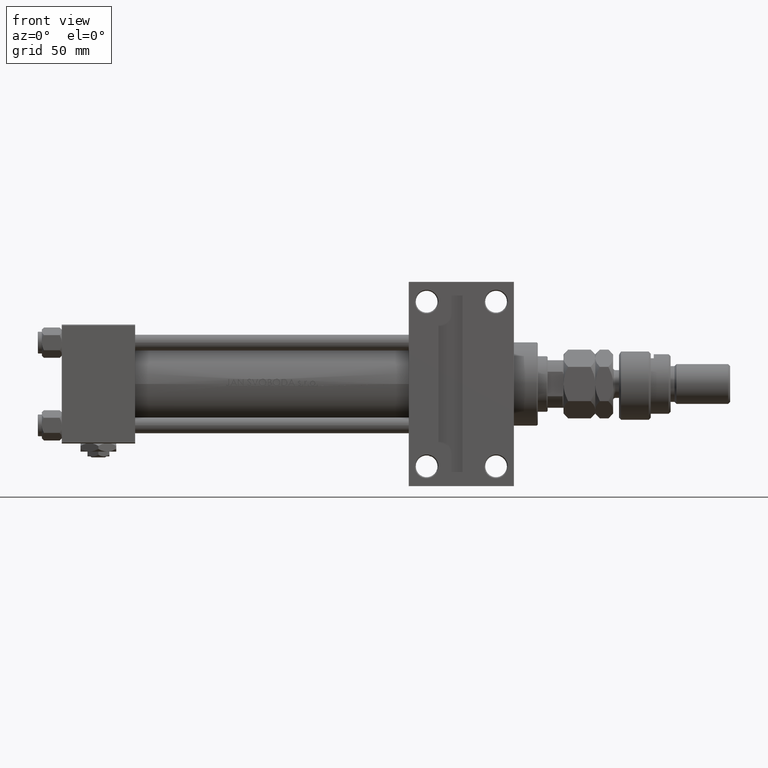
[diagram: clean part render]
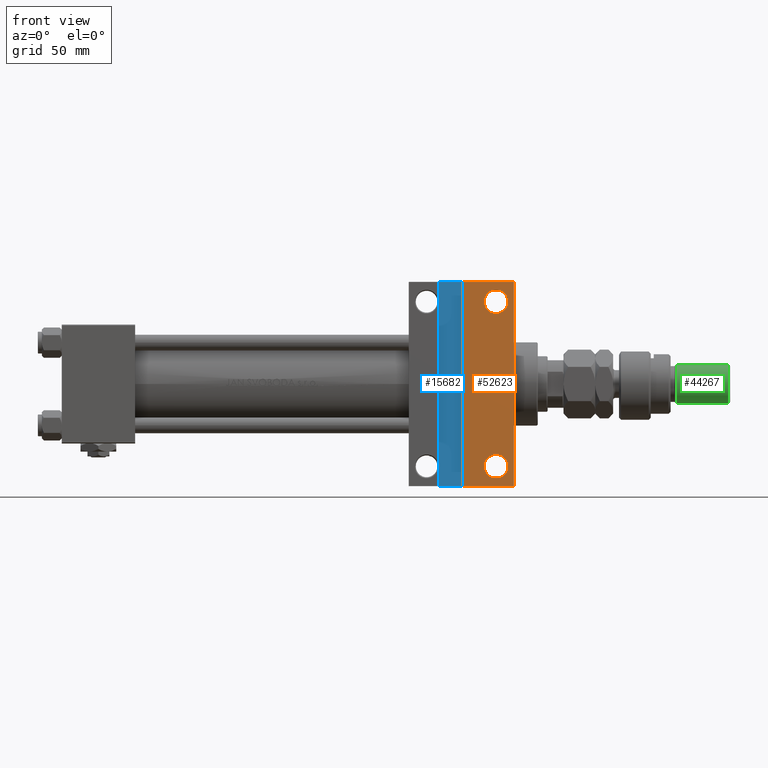
[diagram: same view with three faces highlighted in distinct colors, each labeled with its STEP entity id]
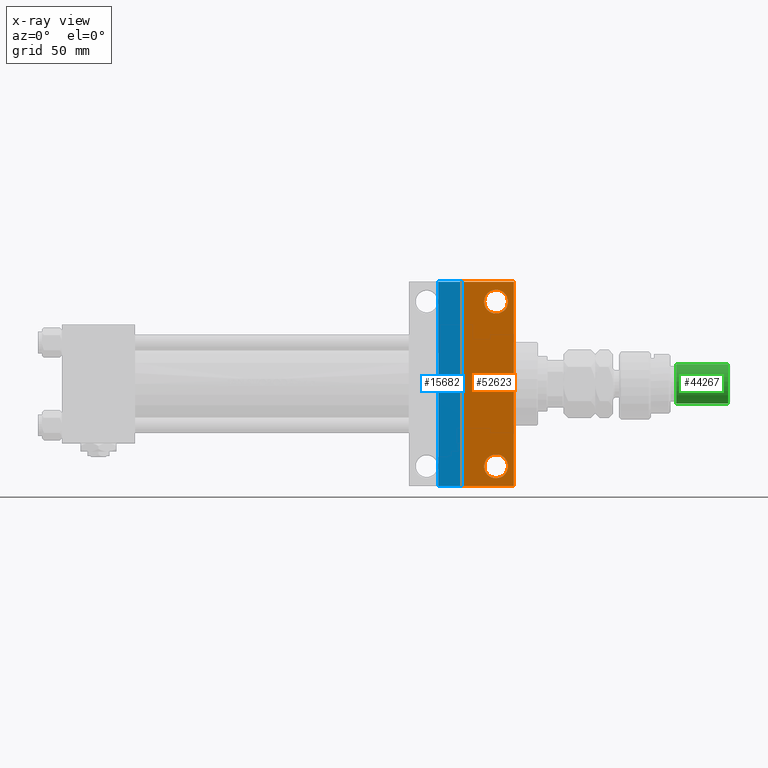
[diagram: x-ray of the same camera — body ghosted, the three highlighted faces saturated]
A machine part, front view with three faces highlighted in distinct colors.
The next image is the same camera in x-ray (body ghosted, the three faces saturated) — at least one of them is partly hidden behind the body in this view.
Their STEP definitions:

[orange] entity #52623 — the highlighted planar face has unit normal (0, -1, -0).
#353 = FACE_BOUND ( 'NONE', #10623, .T. ) ;
#1362 = VECTOR ( 'NONE', #19500, 1000.000000000000000 ) ;
#2785 = CIRCLE ( 'NONE', #15802, 5.999499999999935440 ) ;
#4332 = DIRECTION ( 'NONE',  ( 0.000000000000000000, 1.000000000000000000, 0.000000000000000000 ) ) ;
#4601 = EDGE_CURVE ( 'NONE', #52474, #33987, #50039, .T. ) ;
#5821 = CARTESIAN_POINT ( 'NONE',  ( 213.0005000000000450, 41.50000000000000000, -29.99999999999999289 ) ) ;
#6315 = AXIS2_PLACEMENT_3D ( 'NONE', #32900, #37488, #49427 ) ;
#7435 = CARTESIAN_POINT ( 'NONE',  ( 228.0000000000000284, -51.50000000000000711, -29.99999999999999645 ) ) ;
#7910 = CARTESIAN_POINT ( 'NONE',  ( 218.9999999999999716, 41.50000000000000000, -29.99999999999999289 ) ) ;
#8630 = EDGE_CURVE ( 'NONE', #31294, #45813, #18038, .T. ) ;
#9238 = EDGE_CURVE ( 'NONE', #45813, #31294, #36266, .T. ) ;
#9424 = CARTESIAN_POINT ( 'NONE',  ( 218.9999999999999716, -41.50000000000000000, -30.00000000000000000 ) ) ;
#10143 = DIRECTION ( 'NONE',  ( -0.000000000000000000, -1.000000000000000000, -0.000000000000000000 ) ) ;
#10152 = ORIENTED_EDGE ( 'NONE', *, *, #8630, .T. ) ;
#10623 = EDGE_LOOP ( 'NONE', ( #47627, #36070 ) ) ;
#11457 = VECTOR ( 'NONE', #23783, 1000.000000000000000 ) ;
#11495 = CARTESIAN_POINT ( 'NONE',  ( 224.9994999999998981, 41.50000000000000000, -29.99999999999999289 ) ) ;
#12058 = CARTESIAN_POINT ( 'NONE',  ( 175.0000000000000284, 51.49999999999998579, -29.99999999999999645 ) ) ;
#13792 = CARTESIAN_POINT ( 'NONE',  ( 213.0004999999999598, -41.50000000000000000, -30.00000000000000000 ) ) ;
#15023 = LINE ( 'NONE', #26698, #26494 ) ;
#15452 = AXIS2_PLACEMENT_3D ( 'NONE', #33335, #37399, #4332 ) ;
#15802 = AXIS2_PLACEMENT_3D ( 'NONE', #7910, #28546, #45291 ) ;
#16911 = FACE_OUTER_BOUND ( 'NONE', #48287, .T. ) ;
#17172 = FACE_BOUND ( 'NONE', #37649, .T. ) ;
#18038 = CIRCLE ( 'NONE', #48314, 5.999500000000018929 ) ;
#18936 = DIRECTION ( 'NONE',  ( -0.000000000000000000, -1.156482317317871478E-16, 1.000000000000000000 ) ) ;
#18973 = AXIS2_PLACEMENT_3D ( 'NONE', #22997, #18936, #47104 ) ;
#19500 = DIRECTION ( 'NONE',  ( 0.000000000000000000, -1.000000000000000000, -1.156482317317871478E-16 ) ) ;
#21806 = CARTESIAN_POINT ( 'NONE',  ( 224.9994999999999834, -41.50000000000000000, -30.00000000000000000 ) ) ;
#22960 = EDGE_CURVE ( 'NONE', #51956, #53545, #31160, .T. ) ;
#22997 = CARTESIAN_POINT ( 'NONE',  ( 218.9999999999999716, -41.50000000000000000, -30.00000000000000000 ) ) ;
#23506 = EDGE_CURVE ( 'NONE', #45231, #40950, #15023, .T. ) ;
#23783 = DIRECTION ( 'NONE',  ( -1.000000000000000000, -1.309225264888155637E-16, -0.000000000000000000 ) ) ;
#25989 = CARTESIAN_POINT ( 'NONE',  ( 228.0000000000000284, 51.49999999999996447, -29.99999999999999645 ) ) ;
#26494 = VECTOR ( 'NONE', #10143, 1000.000000000000000 ) ;
#26698 = CARTESIAN_POINT ( 'NONE',  ( 202.0000000000000000, -51.50000000000000000, -29.99999999999999645 ) ) ;
#28301 = ORIENTED_EDGE ( 'NONE', *, *, #22960, .T. ) ;
#28387 = ORIENTED_EDGE ( 'NONE', *, *, #52204, .T. ) ;
#28546 = DIRECTION ( 'NONE',  ( -0.000000000000000000, -1.156482317317871478E-16, 1.000000000000000000 ) ) ;
#30558 = DIRECTION ( 'NONE',  ( -0.000000000000000000, -1.156482317317871478E-16, 1.000000000000000000 ) ) ;
#31160 = LINE ( 'NONE', #52290, #1362 ) ;
#31294 = VERTEX_POINT ( 'NONE', #21806 ) ;
#32407 = LINE ( 'NONE', #12058, #42919 ) ;
#32900 = CARTESIAN_POINT ( 'NONE',  ( 228.0000000000000000, 30.00000000000000000, -29.99999999999999289 ) ) ;
#33335 = CARTESIAN_POINT ( 'NONE',  ( 218.9999999999999716, 41.50000000000000000, -29.99999999999999289 ) ) ;
#33987 = VERTEX_POINT ( 'NONE', #11495 ) ;
#36070 = ORIENTED_EDGE ( 'NONE', *, *, #44409, .T. ) ;
#36266 = CIRCLE ( 'NONE', #18973, 5.999500000000018929 ) ;
#37399 = DIRECTION ( 'NONE',  ( -0.000000000000000000, -1.156482317317871478E-16, 1.000000000000000000 ) ) ;
#37488 = DIRECTION ( 'NONE',  ( 0.000000000000000000, 1.156482317317871478E-16, -1.000000000000000000 ) ) ;
#37649 = EDGE_LOOP ( 'NONE', ( #51813, #10152 ) ) ;
#38408 = DIRECTION ( 'NONE',  ( 0.000000000000000000, 1.000000000000000000, 0.000000000000000000 ) ) ;
#40796 = CARTESIAN_POINT ( 'NONE',  ( 202.0000000000000000, -51.50000000000000000, -29.99999999999999645 ) ) ;
#40950 = VERTEX_POINT ( 'NONE', #40796 ) ;
#42919 = VECTOR ( 'NONE', #45115, 1000.000000000000000 ) ;
#44409 = EDGE_CURVE ( 'NONE', #33987, #52474, #2785, .T. ) ;
#45082 = PLANE ( 'NONE',  #6315 ) ;
#45115 = DIRECTION ( 'NONE',  ( 1.000000000000000000, -3.927675794664467405E-16, 0.000000000000000000 ) ) ;
#45231 = VERTEX_POINT ( 'NONE', #45569 ) ;
#45291 = DIRECTION ( 'NONE',  ( 0.000000000000000000, 1.000000000000000000, 0.000000000000000000 ) ) ;
#45569 = CARTESIAN_POINT ( 'NONE',  ( 202.0000000000000000, 51.49999999999998579, -29.99999999999999645 ) ) ;
#45813 = VERTEX_POINT ( 'NONE', #13792 ) ;
#47104 = DIRECTION ( 'NONE',  ( 0.000000000000000000, 1.000000000000000000, 0.000000000000000000 ) ) ;
#47627 = ORIENTED_EDGE ( 'NONE', *, *, #4601, .T. ) ;
#48287 = EDGE_LOOP ( 'NONE', ( #48364, #49757, #28301, #28387 ) ) ;
#48314 = AXIS2_PLACEMENT_3D ( 'NONE', #9424, #30558, #38408 ) ;
#48364 = ORIENTED_EDGE ( 'NONE', *, *, #23506, .F. ) ;
#49008 = EDGE_CURVE ( 'NONE', #45231, #51956, #32407, .T. ) ;
#49427 = DIRECTION ( 'NONE',  ( 0.000000000000000000, 1.000000000000000000, 1.156482317317871478E-16 ) ) ;
#49757 = ORIENTED_EDGE ( 'NONE', *, *, #49008, .T. ) ;
#50039 = CIRCLE ( 'NONE', #15452, 5.999499999999935440 ) ;
#51813 = ORIENTED_EDGE ( 'NONE', *, *, #9238, .T. ) ;
#51956 = VERTEX_POINT ( 'NONE', #25989 ) ;
#52204 = EDGE_CURVE ( 'NONE', #53545, #40950, #52776, .T. ) ;
#52290 = CARTESIAN_POINT ( 'NONE',  ( 228.0000000000000000, 30.00000000000000000, -29.99999999999999289 ) ) ;
#52474 = VERTEX_POINT ( 'NONE', #5821 ) ;
#52623 = ADVANCED_FACE ( 'NONE', ( #16911, #17172, #353 ), #45082, .T. ) ;
#52776 = LINE ( 'NONE', #53037, #11457 ) ;
#53037 = CARTESIAN_POINT ( 'NONE',  ( 175.0000000000000284, -51.50000000000001421, -29.99999999999999645 ) ) ;
#53545 = VERTEX_POINT ( 'NONE', #7435 ) ;

[blue] entity #15682 — the highlighted planar face has unit normal (0, -1, 0).
#2501 = EDGE_CURVE ( 'NONE', #46007, #38560, #52324, .T. ) ;
#7002 = DIRECTION ( 'NONE',  ( 1.000000000000000000, 0.000000000000000000, 0.000000000000000000 ) ) ;
#7046 = DIRECTION ( 'NONE',  ( -1.000000000000000000, -0.000000000000000000, -0.000000000000000000 ) ) ;
#11571 = ORIENTED_EDGE ( 'NONE', *, *, #22475, .T. ) ;
#11655 = CARTESIAN_POINT ( 'NONE',  ( 190.0000000000000568, -51.50000000000000000, -25.99999999999999645 ) ) ;
#12417 = CARTESIAN_POINT ( 'NONE',  ( 202.0000000000000000, -51.50000000000000711, -25.99999999999999645 ) ) ;
#13619 = DIRECTION ( 'NONE',  ( 0.000000000000000000, 0.000000000000000000, -1.000000000000000000 ) ) ;
#15141 = LINE ( 'NONE', #44117, #38127 ) ;
#15682 = ADVANCED_FACE ( 'NONE', ( #43147 ), #34224, .T. ) ;
#21176 = EDGE_CURVE ( 'NONE', #38560, #48259, #21541, .T. ) ;
#21541 = LINE ( 'NONE', #29679, #35922 ) ;
#22475 = EDGE_CURVE ( 'NONE', #37160, #46007, #50817, .T. ) ;
#25636 = CARTESIAN_POINT ( 'NONE',  ( 202.0000000000000000, -51.50000000000000000, -25.99999999999999645 ) ) ;
#29161 = DIRECTION ( 'NONE',  ( -0.000000000000000000, -1.000000000000000000, -0.000000000000000000 ) ) ;
#29679 = CARTESIAN_POINT ( 'NONE',  ( 190.0000000000000568, -51.50000000000000000, -25.99999999999999645 ) ) ;
#30469 = DIRECTION ( 'NONE',  ( 0.000000000000000000, 1.000000000000000000, 0.000000000000000000 ) ) ;
#30628 = AXIS2_PLACEMENT_3D ( 'NONE', #47205, #13619, #46937 ) ;
#31725 = CARTESIAN_POINT ( 'NONE',  ( 190.0000000000000568, -51.50000000000000000, -25.99999999999999645 ) ) ;
#34224 = PLANE ( 'NONE',  #30628 ) ;
#35647 = CARTESIAN_POINT ( 'NONE',  ( 190.0000000000000568, 51.49999999999998579, -25.99999999999999645 ) ) ;
#35804 = EDGE_CURVE ( 'NONE', #48259, #37160, #15141, .T. ) ;
#35922 = VECTOR ( 'NONE', #30469, 1000.000000000000000 ) ;
#37160 = VERTEX_POINT ( 'NONE', #44596 ) ;
#38127 = VECTOR ( 'NONE', #7002, 1000.000000000000000 ) ;
#38560 = VERTEX_POINT ( 'NONE', #11655 ) ;
#41040 = ORIENTED_EDGE ( 'NONE', *, *, #35804, .T. ) ;
#43147 = FACE_OUTER_BOUND ( 'NONE', #53096, .T. ) ;
#43729 = ORIENTED_EDGE ( 'NONE', *, *, #21176, .T. ) ;
#43756 = VECTOR ( 'NONE', #29161, 1000.000000000000000 ) ;
#44117 = CARTESIAN_POINT ( 'NONE',  ( 190.0000000000000568, 51.49999999999998579, -25.99999999999999645 ) ) ;
#44596 = CARTESIAN_POINT ( 'NONE',  ( 202.0000000000000000, 51.49999999999998579, -25.99999999999999645 ) ) ;
#45711 = ORIENTED_EDGE ( 'NONE', *, *, #2501, .T. ) ;
#46007 = VERTEX_POINT ( 'NONE', #12417 ) ;
#46937 = DIRECTION ( 'NONE',  ( -1.000000000000000000, 0.000000000000000000, -0.000000000000000000 ) ) ;
#47205 = CARTESIAN_POINT ( 'NONE',  ( 0.000000000000000000, 0.000000000000000000, -25.99999999999999645 ) ) ;
#47354 = VECTOR ( 'NONE', #7046, 1000.000000000000000 ) ;
#48259 = VERTEX_POINT ( 'NONE', #35647 ) ;
#50817 = LINE ( 'NONE', #25636, #43756 ) ;
#52324 = LINE ( 'NONE', #31725, #47354 ) ;
#53096 = EDGE_LOOP ( 'NONE', ( #11571, #45711, #43729, #41040 ) ) ;

[green] entity #44267 — the highlighted cylindrical surface (edge-blend (fillet) strip) has radius 10 mm, axis along (-1, -0, 0).
#2930 = ORIENTED_EDGE ( 'NONE', *, *, #31152, .T. ) ;
#3310 = CIRCLE ( 'NONE', #33605, 10.00000000000000000 ) ;
#3358 = CARTESIAN_POINT ( 'NONE',  ( 0.000000000000000000, 0.000000000000000000, 29.00000000000000711 ) ) ;
#9317 = CYLINDRICAL_SURFACE ( 'NONE', #17542, 10.00000000000000000 ) ;
#9839 = FACE_OUTER_BOUND ( 'NONE', #18809, .T. ) ;
#11688 = ORIENTED_EDGE ( 'NONE', *, *, #23949, .F. ) ;
#12680 = VECTOR ( 'NONE', #14669, 1000.000000000000000 ) ;
#14188 = DIRECTION ( 'NONE',  ( -0.000000000000000000, -0.000000000000000000, -1.000000000000000000 ) ) ;
#14398 = CARTESIAN_POINT ( 'NONE',  ( 10.00000000000000000, 1.224646799147353256E-15, 56.00000000000000711 ) ) ;
#14669 = DIRECTION ( 'NONE',  ( -0.000000000000000000, -0.000000000000000000, -1.000000000000000000 ) ) ;
#16102 = DIRECTION ( 'NONE',  ( -0.000000000000000000, -0.000000000000000000, 1.000000000000000000 ) ) ;
#17542 = AXIS2_PLACEMENT_3D ( 'NONE', #38569, #17988, #25866 ) ;
#17988 = DIRECTION ( 'NONE',  ( -0.000000000000000000, -0.000000000000000000, -1.000000000000000000 ) ) ;
#18809 = EDGE_LOOP ( 'NONE', ( #11688, #2930, #53166, #46579 ) ) ;
#19065 = CARTESIAN_POINT ( 'NONE',  ( -10.00000000000000000, 0.000000000000000000, 56.00000000000000711 ) ) ;
#23130 = LINE ( 'NONE', #19065, #29994 ) ;
#23771 = EDGE_CURVE ( 'NONE', #34155, #27374, #23130, .T. ) ;
#23949 = EDGE_CURVE ( 'NONE', #31253, #50549, #52073, .T. ) ;
#25866 = DIRECTION ( 'NONE',  ( -1.000000000000000000, 0.000000000000000000, 0.000000000000000000 ) ) ;
#27374 = VERTEX_POINT ( 'NONE', #41805 ) ;
#29929 = CARTESIAN_POINT ( 'NONE',  ( -10.00000000000000000, 0.000000000000000000, 54.99999999999998579 ) ) ;
#29994 = VECTOR ( 'NONE', #14188, 1000.000000000000000 ) ;
#31152 = EDGE_CURVE ( 'NONE', #31253, #34155, #3310, .T. ) ;
#31253 = VERTEX_POINT ( 'NONE', #46449 ) ;
#33225 = CIRCLE ( 'NONE', #34073, 10.00000000000000000 ) ;
#33605 = AXIS2_PLACEMENT_3D ( 'NONE', #52802, #41596, #48447 ) ;
#34073 = AXIS2_PLACEMENT_3D ( 'NONE', #3358, #16102, #53494 ) ;
#34155 = VERTEX_POINT ( 'NONE', #29929 ) ;
#38569 = CARTESIAN_POINT ( 'NONE',  ( 0.000000000000000000, 0.000000000000000000, 56.00000000000000711 ) ) ;
#41596 = DIRECTION ( 'NONE',  ( 0.000000000000000000, 0.000000000000000000, -1.000000000000000000 ) ) ;
#41805 = CARTESIAN_POINT ( 'NONE',  ( -10.00000000000000000, 0.000000000000000000, 29.00000000000000711 ) ) ;
#44267 = ADVANCED_FACE ( 'NONE', ( #9839 ), #9317, .T. ) ;
#46449 = CARTESIAN_POINT ( 'NONE',  ( 10.00000000000000000, 1.224646799147353256E-15, 54.99999999999998579 ) ) ;
#46579 = ORIENTED_EDGE ( 'NONE', *, *, #51216, .T. ) ;
#48447 = DIRECTION ( 'NONE',  ( 1.000000000000000000, 0.000000000000000000, 0.000000000000000000 ) ) ;
#50549 = VERTEX_POINT ( 'NONE', #52367 ) ;
#51216 = EDGE_CURVE ( 'NONE', #27374, #50549, #33225, .T. ) ;
#52073 = LINE ( 'NONE', #14398, #12680 ) ;
#52367 = CARTESIAN_POINT ( 'NONE',  ( 10.00000000000000000, 1.224646799147353256E-15, 29.00000000000000711 ) ) ;
#52802 = CARTESIAN_POINT ( 'NONE',  ( 0.000000000000000000, 0.000000000000000000, 54.99999999999998579 ) ) ;
#53166 = ORIENTED_EDGE ( 'NONE', *, *, #23771, .T. ) ;
#53494 = DIRECTION ( 'NONE',  ( 1.000000000000000000, 0.000000000000000000, 0.000000000000000000 ) ) ;